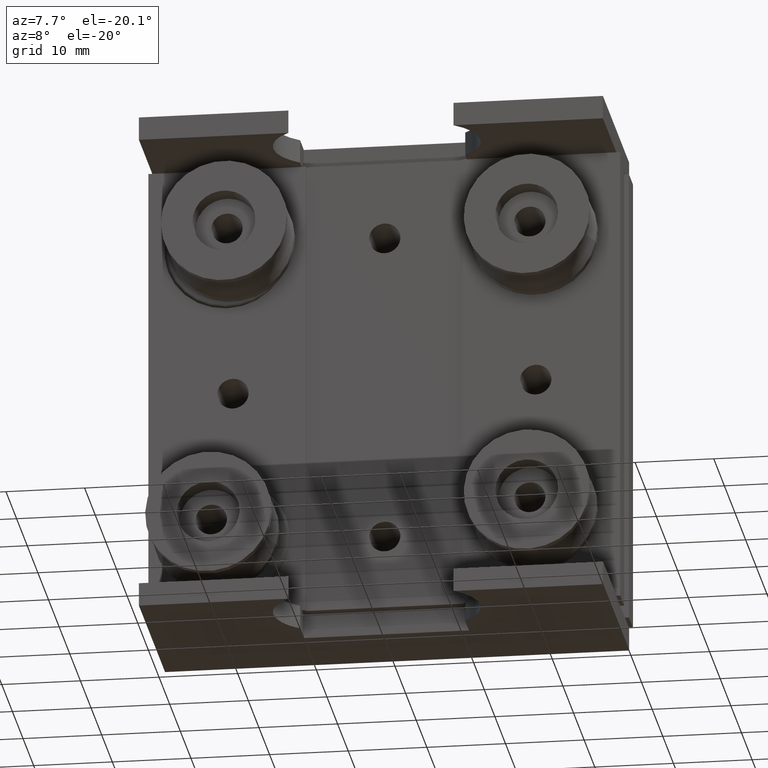
[diagram: clean part render]
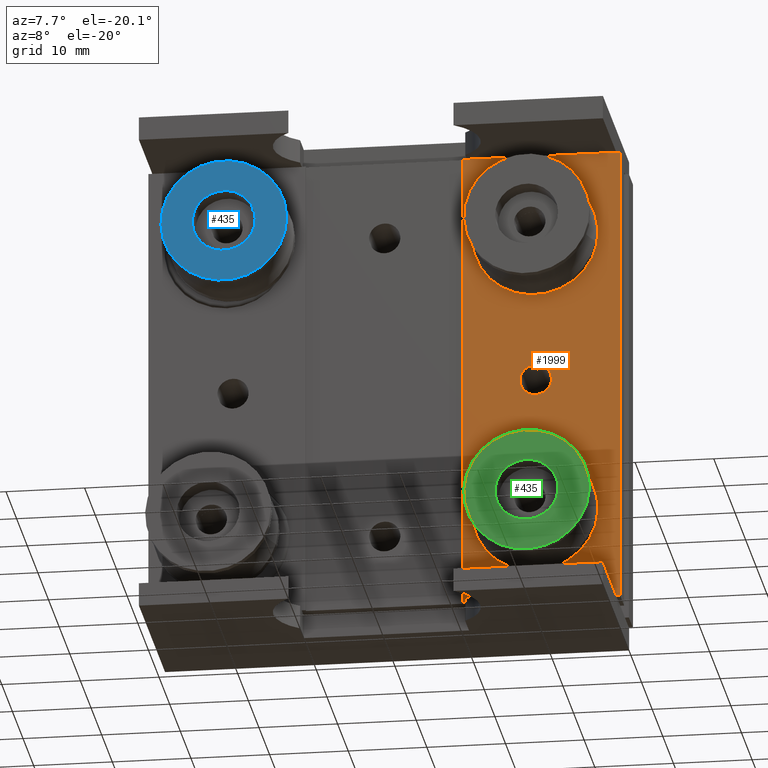
[diagram: same view with three faces highlighted in distinct colors, each labeled with its STEP entity id]
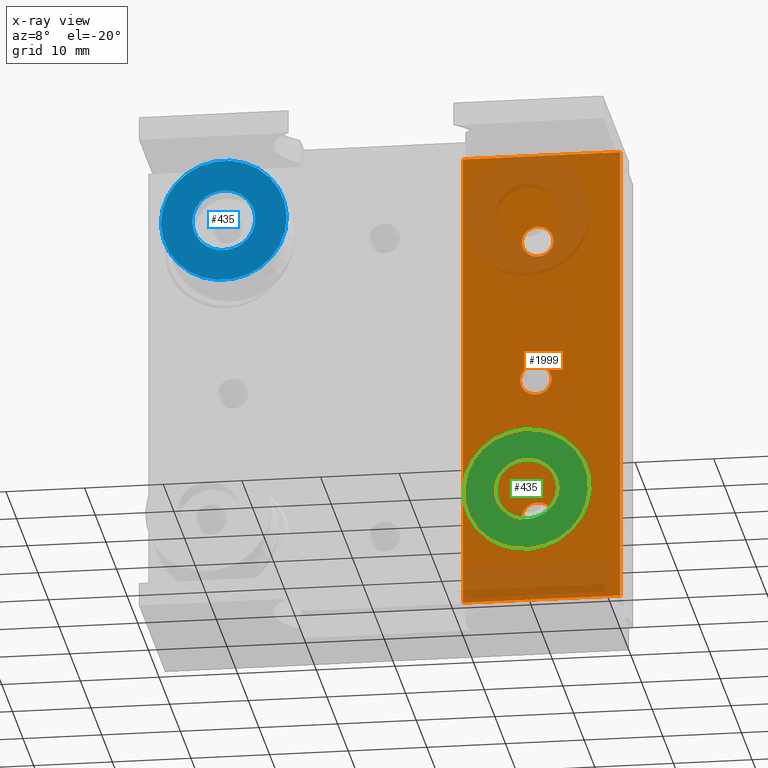
[diagram: x-ray of the same camera — body ghosted, the three highlighted faces saturated]
A machine part, auxiliary view with three faces highlighted in distinct colors.
The next image is the same camera in x-ray (body ghosted, the three faces saturated) — at least one of them is partly hidden behind the body in this view.
Their STEP definitions:

[orange] entity #1999 — the highlighted planar face has unit normal (0, -1, 0).
#19 = LINE ( 'NONE', #1801, #3126 ) ;
#76 = EDGE_CURVE ( 'NONE', #1173, #1917, #1984, .T. ) ;
#85 = ORIENTED_EDGE ( 'NONE', *, *, #2874, .F. ) ;
#112 = CARTESIAN_POINT ( 'NONE',  ( 19.50000000000001066, 0.000000000000000000, 18.49999999999999289 ) ) ;
#137 = DIRECTION ( 'NONE',  ( 0.000000000000000000, 0.000000000000000000, -1.000000000000000000 ) ) ;
#139 = CIRCLE ( 'NONE', #1259, 2.000000000000005329 ) ;
#180 = CARTESIAN_POINT ( 'NONE',  ( 19.50000000000001066, 0.000000000000000000, -16.49999999999998579 ) ) ;
#198 = ORIENTED_EDGE ( 'NONE', *, *, #611, .F. ) ;
#215 = LINE ( 'NONE', #2763, #1036 ) ;
#284 = CARTESIAN_POINT ( 'NONE',  ( 0.000000000000000000, 0.000000000000000000, 0.000000000000000000 ) ) ;
#405 = CARTESIAN_POINT ( 'NONE',  ( 19.50000000000001066, 0.000000000000000000, 16.49999999999998579 ) ) ;
#484 = ORIENTED_EDGE ( 'NONE', *, *, #2778, .F. ) ;
#490 = DIRECTION ( 'NONE',  ( 0.000000000000000000, -1.000000000000000000, 0.000000000000000000 ) ) ;
#493 = CARTESIAN_POINT ( 'NONE',  ( 19.50000000000001066, 0.000000000000000000, -18.49999999999999289 ) ) ;
#513 = CIRCLE ( 'NONE', #2536, 2.000000000000005329 ) ;
#538 = PLANE ( 'NONE',  #3236 ) ;
#543 = ORIENTED_EDGE ( 'NONE', *, *, #1858, .F. ) ;
#551 = DIRECTION ( 'NONE',  ( 0.000000000000000000, -1.000000000000000000, 0.000000000000000000 ) ) ;
#607 = EDGE_LOOP ( 'NONE', ( #2040, #1242, #198, #85 ) ) ;
#611 = EDGE_CURVE ( 'NONE', #2074, #1173, #2007, .T. ) ;
#618 = EDGE_LOOP ( 'NONE', ( #2386, #484 ) ) ;
#697 = DIRECTION ( 'NONE',  ( 0.000000000000000000, 0.000000000000000000, -1.000000000000000000 ) ) ;
#700 = EDGE_CURVE ( 'NONE', #2097, #2586, #3076, .T. ) ;
#724 = VERTEX_POINT ( 'NONE', #1180 ) ;
#774 = FACE_BOUND ( 'NONE', #618, .T. ) ;
#846 = CARTESIAN_POINT ( 'NONE',  ( 19.50000000000001066, 0.000000000000000000, 20.49999999999999645 ) ) ;
#890 = VERTEX_POINT ( 'NONE', #2141 ) ;
#928 = CARTESIAN_POINT ( 'NONE',  ( 19.25000000000000000, 0.000000000000000000, -2.357445088358654757E-15 ) ) ;
#933 = VERTEX_POINT ( 'NONE', #846 ) ;
#974 = DIRECTION ( 'NONE',  ( 0.000000000000000000, 0.000000000000000000, 1.000000000000000000 ) ) ;
#979 = DIRECTION ( 'NONE',  ( -1.000000000000000000, -0.000000000000000000, 1.156482317317871725E-16 ) ) ;
#989 = DIRECTION ( 'NONE',  ( 0.000000000000000000, -1.000000000000000000, 0.000000000000000000 ) ) ;
#1000 = CARTESIAN_POINT ( 'NONE',  ( 10.00000000000000178, 0.000000000000000000, -29.49999999999998934 ) ) ;
#1036 = VECTOR ( 'NONE', #974, 1000.000000000000000 ) ;
#1173 = VERTEX_POINT ( 'NONE', #2947 ) ;
#1180 = CARTESIAN_POINT ( 'NONE',  ( 10.00000000000000000, 0.000000000000000000, 30.00000000000001421 ) ) ;
#1221 = VECTOR ( 'NONE', #1245, 1000.000000000000000 ) ;
#1239 = CARTESIAN_POINT ( 'NONE',  ( -29.99999999999998579, 0.000000000000000000, -29.49999999999998579 ) ) ;
#1242 = ORIENTED_EDGE ( 'NONE', *, *, #76, .F. ) ;
#1245 = DIRECTION ( 'NONE',  ( -2.332401312237723920E-16, 0.000000000000000000, -1.000000000000000000 ) ) ;
#1259 = AXIS2_PLACEMENT_3D ( 'NONE', #3257, #989, #697 ) ;
#1345 = DIRECTION ( 'NONE',  ( 0.000000000000000000, -1.000000000000000000, 0.000000000000000000 ) ) ;
#1474 = AXIS2_PLACEMENT_3D ( 'NONE', #928, #3267, #2939 ) ;
#1489 = CARTESIAN_POINT ( 'NONE',  ( 30.00000000000001421, 0.000000000000000000, 30.00000000000000711 ) ) ;
#1527 = ORIENTED_EDGE ( 'NONE', *, *, #700, .F. ) ;
#1547 = DIRECTION ( 'NONE',  ( 0.000000000000000000, -0.000000000000000000, -1.000000000000000000 ) ) ;
#1650 = DIRECTION ( 'NONE',  ( 0.000000000000000000, 0.000000000000000000, -1.000000000000000000 ) ) ;
#1706 = EDGE_CURVE ( 'NONE', #3281, #933, #3169, .T. ) ;
#1746 = DIRECTION ( 'NONE',  ( 0.000000000000000000, -1.000000000000000000, 0.000000000000000000 ) ) ;
#1801 = CARTESIAN_POINT ( 'NONE',  ( 30.00000000000001421, 0.000000000000000000, 30.00000000000000711 ) ) ;
#1818 = AXIS2_PLACEMENT_3D ( 'NONE', #112, #2179, #1650 ) ;
#1824 = FACE_OUTER_BOUND ( 'NONE', #607, .T. ) ;
#1858 = EDGE_CURVE ( 'NONE', #933, #3281, #139, .T. ) ;
#1874 = CARTESIAN_POINT ( 'NONE',  ( 19.25000000000000000, 0.000000000000000000, -2.357445088358654757E-15 ) ) ;
#1917 = VERTEX_POINT ( 'NONE', #1000 ) ;
#1984 = LINE ( 'NONE', #1239, #2067 ) ;
#1999 = ADVANCED_FACE ( 'NONE', ( #1824, #2859, #2840, #774 ), #538, .T. ) ;
#2007 = LINE ( 'NONE', #1489, #1221 ) ;
#2038 = DIRECTION ( 'NONE',  ( 1.000000000000000000, -0.000000000000000000, -1.156482317317871478E-16 ) ) ;
#2040 = ORIENTED_EDGE ( 'NONE', *, *, #2131, .F. ) ;
#2067 = VECTOR ( 'NONE', #979, 1000.000000000000000 ) ;
#2074 = VERTEX_POINT ( 'NONE', #2650 ) ;
#2097 = VERTEX_POINT ( 'NONE', #2673 ) ;
#2131 = EDGE_CURVE ( 'NONE', #1917, #724, #215, .T. ) ;
#2141 = CARTESIAN_POINT ( 'NONE',  ( 19.50000000000001066, 0.000000000000000000, -20.49999999999999645 ) ) ;
#2171 = CARTESIAN_POINT ( 'NONE',  ( 19.25000000000000000, 0.000000000000000000, 2.000000000000000888 ) ) ;
#2179 = DIRECTION ( 'NONE',  ( 0.000000000000000000, -1.000000000000000000, 0.000000000000000000 ) ) ;
#2296 = EDGE_CURVE ( 'NONE', #890, #2338, #513, .T. ) ;
#2338 = VERTEX_POINT ( 'NONE', #180 ) ;
#2386 = ORIENTED_EDGE ( 'NONE', *, *, #2296, .F. ) ;
#2536 = AXIS2_PLACEMENT_3D ( 'NONE', #493, #1746, #137 ) ;
#2586 = VERTEX_POINT ( 'NONE', #2171 ) ;
#2593 = CIRCLE ( 'NONE', #3190, 2.000000000000005329 ) ;
#2650 = CARTESIAN_POINT ( 'NONE',  ( 30.00000000000001421, 0.000000000000000000, 30.00000000000000711 ) ) ;
#2657 = AXIS2_PLACEMENT_3D ( 'NONE', #1874, #1345, #3193 ) ;
#2673 = CARTESIAN_POINT ( 'NONE',  ( 19.25000000000000000, 0.000000000000000000, -2.000000000000005329 ) ) ;
#2763 = CARTESIAN_POINT ( 'NONE',  ( 10.00000000000000000, 0.000000000000000000, -37.12488340395904629 ) ) ;
#2778 = EDGE_CURVE ( 'NONE', #2338, #890, #2593, .T. ) ;
#2840 = FACE_BOUND ( 'NONE', #3260, .T. ) ;
#2859 = FACE_BOUND ( 'NONE', #2933, .T. ) ;
#2874 = EDGE_CURVE ( 'NONE', #724, #2074, #19, .T. ) ;
#2933 = EDGE_LOOP ( 'NONE', ( #2969, #543 ) ) ;
#2939 = DIRECTION ( 'NONE',  ( 0.000000000000000000, 0.000000000000000000, -1.000000000000000000 ) ) ;
#2947 = CARTESIAN_POINT ( 'NONE',  ( 30.00000000000000000, 0.000000000000000000, -29.49999999999999289 ) ) ;
#2954 = EDGE_CURVE ( 'NONE', #2586, #2097, #2995, .T. ) ;
#2969 = ORIENTED_EDGE ( 'NONE', *, *, #1706, .F. ) ;
#2995 = CIRCLE ( 'NONE', #2657, 2.000000000000003109 ) ;
#3076 = CIRCLE ( 'NONE', #1474, 2.000000000000003109 ) ;
#3126 = VECTOR ( 'NONE', #2038, 1000.000000000000000 ) ;
#3169 = CIRCLE ( 'NONE', #1818, 2.000000000000005329 ) ;
#3190 = AXIS2_PLACEMENT_3D ( 'NONE', #3249, #490, #3266 ) ;
#3193 = DIRECTION ( 'NONE',  ( 0.000000000000000000, 0.000000000000000000, -1.000000000000000000 ) ) ;
#3195 = ORIENTED_EDGE ( 'NONE', *, *, #2954, .F. ) ;
#3236 = AXIS2_PLACEMENT_3D ( 'NONE', #284, #551, #1547 ) ;
#3249 = CARTESIAN_POINT ( 'NONE',  ( 19.50000000000001066, 0.000000000000000000, -18.49999999999999289 ) ) ;
#3257 = CARTESIAN_POINT ( 'NONE',  ( 19.50000000000001066, 0.000000000000000000, 18.49999999999999289 ) ) ;
#3260 = EDGE_LOOP ( 'NONE', ( #1527, #3195 ) ) ;
#3266 = DIRECTION ( 'NONE',  ( 0.000000000000000000, 0.000000000000000000, -1.000000000000000000 ) ) ;
#3267 = DIRECTION ( 'NONE',  ( 0.000000000000000000, -1.000000000000000000, 0.000000000000000000 ) ) ;
#3281 = VERTEX_POINT ( 'NONE', #405 ) ;

[blue] entity #435 — the highlighted planar face has unit normal (0, 1, 0).
#71 = DIRECTION ( 'NONE',  ( -0.000000000000000000, -0.000000000000000000, 1.000000000000000000 ) ) ;
#121 = VERTEX_POINT ( 'NONE', #2235 ) ;
#367 = AXIS2_PLACEMENT_3D ( 'NONE', #576, #597, #3125 ) ;
#393 = DIRECTION ( 'NONE',  ( 1.000000000000000000, 0.000000000000000000, 0.000000000000000000 ) ) ;
#425 = CARTESIAN_POINT ( 'NONE',  ( 0.000000000000000000, 0.000000000000000000, 8.000000000000001776 ) ) ;
#435 = ADVANCED_FACE ( 'NONE', ( #1372, #3111 ), #1123, .F. ) ;
#438 = VERTEX_POINT ( 'NONE', #1337 ) ;
#479 = EDGE_CURVE ( 'NONE', #3283, #1365, #1748, .T. ) ;
#512 = ORIENTED_EDGE ( 'NONE', *, *, #3031, .F. ) ;
#576 = CARTESIAN_POINT ( 'NONE',  ( 0.000000000000000000, 0.000000000000000000, 8.000000000000001776 ) ) ;
#597 = DIRECTION ( 'NONE',  ( 0.000000000000000000, 0.000000000000000000, -1.000000000000000000 ) ) ;
#635 = ORIENTED_EDGE ( 'NONE', *, *, #2317, .T. ) ;
#868 = CARTESIAN_POINT ( 'NONE',  ( 0.000000000000000000, 0.000000000000000000, 8.000000000000001776 ) ) ;
#888 = ORIENTED_EDGE ( 'NONE', *, *, #479, .T. ) ;
#1123 = PLANE ( 'NONE',  #367 ) ;
#1298 = AXIS2_PLACEMENT_3D ( 'NONE', #3176, #2151, #393 ) ;
#1337 = CARTESIAN_POINT ( 'NONE',  ( -4.000000000000000000, 4.898587196589412829E-16, 8.000000000000001776 ) ) ;
#1365 = VERTEX_POINT ( 'NONE', #2450 ) ;
#1372 = FACE_BOUND ( 'NONE', #1388, .T. ) ;
#1388 = EDGE_LOOP ( 'NONE', ( #2857, #512 ) ) ;
#1748 = CIRCLE ( 'NONE', #2452, 8.000000000000000000 ) ;
#1772 = CIRCLE ( 'NONE', #2102, 8.000000000000000000 ) ;
#2017 = EDGE_CURVE ( 'NONE', #121, #438, #2266, .T. ) ;
#2102 = AXIS2_PLACEMENT_3D ( 'NONE', #425, #3194, #2264 ) ;
#2104 = EDGE_LOOP ( 'NONE', ( #635, #888 ) ) ;
#2151 = DIRECTION ( 'NONE',  ( 0.000000000000000000, 0.000000000000000000, 1.000000000000000000 ) ) ;
#2235 = CARTESIAN_POINT ( 'NONE',  ( 4.000000000000000000, 0.000000000000000000, 8.000000000000001776 ) ) ;
#2264 = DIRECTION ( 'NONE',  ( 1.000000000000000000, 0.000000000000000000, 0.000000000000000000 ) ) ;
#2266 = CIRCLE ( 'NONE', #1298, 4.000000000000000000 ) ;
#2272 = AXIS2_PLACEMENT_3D ( 'NONE', #868, #2913, #2889 ) ;
#2279 = CIRCLE ( 'NONE', #2272, 4.000000000000000000 ) ;
#2317 = EDGE_CURVE ( 'NONE', #1365, #3283, #1772, .T. ) ;
#2450 = CARTESIAN_POINT ( 'NONE',  ( 8.000000000000000000, 0.000000000000000000, 8.000000000000001776 ) ) ;
#2452 = AXIS2_PLACEMENT_3D ( 'NONE', #2569, #71, #2619 ) ;
#2569 = CARTESIAN_POINT ( 'NONE',  ( 0.000000000000000000, 0.000000000000000000, 8.000000000000001776 ) ) ;
#2575 = CARTESIAN_POINT ( 'NONE',  ( -8.000000000000000000, 9.797174393178827630E-16, 8.000000000000001776 ) ) ;
#2619 = DIRECTION ( 'NONE',  ( 1.000000000000000000, 0.000000000000000000, 0.000000000000000000 ) ) ;
#2857 = ORIENTED_EDGE ( 'NONE', *, *, #2017, .F. ) ;
#2889 = DIRECTION ( 'NONE',  ( 1.000000000000000000, 0.000000000000000000, 0.000000000000000000 ) ) ;
#2913 = DIRECTION ( 'NONE',  ( 0.000000000000000000, 0.000000000000000000, 1.000000000000000000 ) ) ;
#3031 = EDGE_CURVE ( 'NONE', #438, #121, #2279, .T. ) ;
#3111 = FACE_OUTER_BOUND ( 'NONE', #2104, .T. ) ;
#3125 = DIRECTION ( 'NONE',  ( -1.000000000000000000, 0.000000000000000000, -0.000000000000000000 ) ) ;
#3176 = CARTESIAN_POINT ( 'NONE',  ( 0.000000000000000000, 0.000000000000000000, 8.000000000000001776 ) ) ;
#3194 = DIRECTION ( 'NONE',  ( -0.000000000000000000, -0.000000000000000000, 1.000000000000000000 ) ) ;
#3283 = VERTEX_POINT ( 'NONE', #2575 ) ;

[green] entity #435 — the highlighted planar face has unit normal (0, 1, 0).
#71 = DIRECTION ( 'NONE',  ( -0.000000000000000000, -0.000000000000000000, 1.000000000000000000 ) ) ;
#121 = VERTEX_POINT ( 'NONE', #2235 ) ;
#367 = AXIS2_PLACEMENT_3D ( 'NONE', #576, #597, #3125 ) ;
#393 = DIRECTION ( 'NONE',  ( 1.000000000000000000, 0.000000000000000000, 0.000000000000000000 ) ) ;
#425 = CARTESIAN_POINT ( 'NONE',  ( 0.000000000000000000, 0.000000000000000000, 8.000000000000001776 ) ) ;
#435 = ADVANCED_FACE ( 'NONE', ( #1372, #3111 ), #1123, .F. ) ;
#438 = VERTEX_POINT ( 'NONE', #1337 ) ;
#479 = EDGE_CURVE ( 'NONE', #3283, #1365, #1748, .T. ) ;
#512 = ORIENTED_EDGE ( 'NONE', *, *, #3031, .F. ) ;
#576 = CARTESIAN_POINT ( 'NONE',  ( 0.000000000000000000, 0.000000000000000000, 8.000000000000001776 ) ) ;
#597 = DIRECTION ( 'NONE',  ( 0.000000000000000000, 0.000000000000000000, -1.000000000000000000 ) ) ;
#635 = ORIENTED_EDGE ( 'NONE', *, *, #2317, .T. ) ;
#868 = CARTESIAN_POINT ( 'NONE',  ( 0.000000000000000000, 0.000000000000000000, 8.000000000000001776 ) ) ;
#888 = ORIENTED_EDGE ( 'NONE', *, *, #479, .T. ) ;
#1123 = PLANE ( 'NONE',  #367 ) ;
#1298 = AXIS2_PLACEMENT_3D ( 'NONE', #3176, #2151, #393 ) ;
#1337 = CARTESIAN_POINT ( 'NONE',  ( -4.000000000000000000, 4.898587196589412829E-16, 8.000000000000001776 ) ) ;
#1365 = VERTEX_POINT ( 'NONE', #2450 ) ;
#1372 = FACE_BOUND ( 'NONE', #1388, .T. ) ;
#1388 = EDGE_LOOP ( 'NONE', ( #2857, #512 ) ) ;
#1748 = CIRCLE ( 'NONE', #2452, 8.000000000000000000 ) ;
#1772 = CIRCLE ( 'NONE', #2102, 8.000000000000000000 ) ;
#2017 = EDGE_CURVE ( 'NONE', #121, #438, #2266, .T. ) ;
#2102 = AXIS2_PLACEMENT_3D ( 'NONE', #425, #3194, #2264 ) ;
#2104 = EDGE_LOOP ( 'NONE', ( #635, #888 ) ) ;
#2151 = DIRECTION ( 'NONE',  ( 0.000000000000000000, 0.000000000000000000, 1.000000000000000000 ) ) ;
#2235 = CARTESIAN_POINT ( 'NONE',  ( 4.000000000000000000, 0.000000000000000000, 8.000000000000001776 ) ) ;
#2264 = DIRECTION ( 'NONE',  ( 1.000000000000000000, 0.000000000000000000, 0.000000000000000000 ) ) ;
#2266 = CIRCLE ( 'NONE', #1298, 4.000000000000000000 ) ;
#2272 = AXIS2_PLACEMENT_3D ( 'NONE', #868, #2913, #2889 ) ;
#2279 = CIRCLE ( 'NONE', #2272, 4.000000000000000000 ) ;
#2317 = EDGE_CURVE ( 'NONE', #1365, #3283, #1772, .T. ) ;
#2450 = CARTESIAN_POINT ( 'NONE',  ( 8.000000000000000000, 0.000000000000000000, 8.000000000000001776 ) ) ;
#2452 = AXIS2_PLACEMENT_3D ( 'NONE', #2569, #71, #2619 ) ;
#2569 = CARTESIAN_POINT ( 'NONE',  ( 0.000000000000000000, 0.000000000000000000, 8.000000000000001776 ) ) ;
#2575 = CARTESIAN_POINT ( 'NONE',  ( -8.000000000000000000, 9.797174393178827630E-16, 8.000000000000001776 ) ) ;
#2619 = DIRECTION ( 'NONE',  ( 1.000000000000000000, 0.000000000000000000, 0.000000000000000000 ) ) ;
#2857 = ORIENTED_EDGE ( 'NONE', *, *, #2017, .F. ) ;
#2889 = DIRECTION ( 'NONE',  ( 1.000000000000000000, 0.000000000000000000, 0.000000000000000000 ) ) ;
#2913 = DIRECTION ( 'NONE',  ( 0.000000000000000000, 0.000000000000000000, 1.000000000000000000 ) ) ;
#3031 = EDGE_CURVE ( 'NONE', #438, #121, #2279, .T. ) ;
#3111 = FACE_OUTER_BOUND ( 'NONE', #2104, .T. ) ;
#3125 = DIRECTION ( 'NONE',  ( -1.000000000000000000, 0.000000000000000000, -0.000000000000000000 ) ) ;
#3176 = CARTESIAN_POINT ( 'NONE',  ( 0.000000000000000000, 0.000000000000000000, 8.000000000000001776 ) ) ;
#3194 = DIRECTION ( 'NONE',  ( -0.000000000000000000, -0.000000000000000000, 1.000000000000000000 ) ) ;
#3283 = VERTEX_POINT ( 'NONE', #2575 ) ;